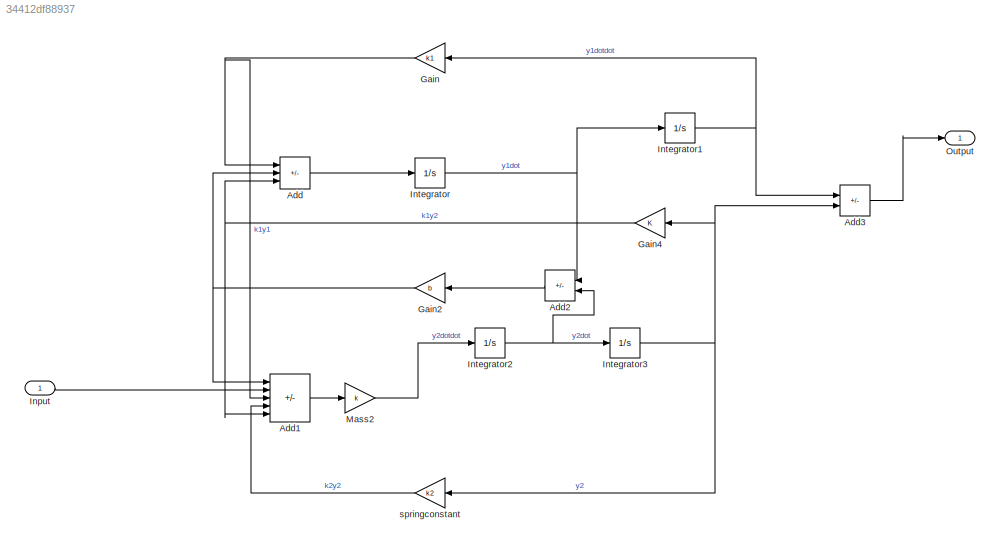
MODEL slx_34412df88937
KIND model
CONFIG AbsTol = auto
CONFIG EnableMultiTasking = off
CONFIG FixedStep = auto
CONFIG MaxStep = auto
CONFIG MinStep = auto
CONFIG RelTol = 1e-3
CONFIG SampleTimeConstraint = Unconstrained
CONFIG SolverName = VariableStepAuto
CONFIG StartTime = 0.0
CONFIG StopTime = 10.0
WORKSPACE source: mxarray member
WORKSPACE b = 50
WORKSPACE k = 100
WORKSPACE k1 = 25
WORKSPACE k2 = 50
BLOCK [Sum] Add
  IconShape = rectangular
  Inputs = --+
  Ports = [3, 1]
BLOCK [Sum] Add1
  IconShape = rectangular
  Inputs = +++-+
  Ports = [5, 1]
BLOCK [Sum] Add2
  IconShape = rectangular
  Inputs = +-
  NameLocation = top
  Ports = [2, 1]
BLOCK [Sum] Add3
  IconShape = rectangular
  Inputs = +-
  Ports = [2, 1]
BLOCK [Gain] Gain
  Gain = k1
  NameLocation = top
BLOCK [Gain] Gain2
  Gain = b
  NameLocation = top
BLOCK [Gain] Gain4
  NameLocation = top
BLOCK [Inport] Input
BLOCK [Integrator] Integrator
  Ports = [1, 1]
BLOCK [Integrator] Integrator1
  Ports = [1, 1]
BLOCK [Integrator] Integrator2
  Ports = [1, 1]
BLOCK [Integrator] Integrator3
  Ports = [1, 1]
BLOCK [Gain] Mass2
  Gain = k
BLOCK [Outport] Output
BLOCK [Gain] springconstant
  Gain = k2
  NameLocation = top
LINE Add1:1 -> Mass2:1
LINE Add2:1 -> Gain2:1
LINE Add3:1 -> Output:1
LINE Add:1 -> Integrator:1
NET Gain2:1 -> Add1:1, Add:2
NET Gain4:1 -> Add1:5, Add:3
NET Gain:1 -> Add1:3, Add:1
LINE Input:1 -> Add1:2
NET Integrator1:1 -> Add3:1, Gain:1
NET Integrator2:1 -> Add2:2, Integrator3:1
NET Integrator3:1 -> Add3:2, Gain4:1, springconstant:1
NET Integrator:1 -> Add2:1, Integrator1:1
LINE Mass2:1 -> Integrator2:1
LINE springconstant:1 -> Add1:4
note: NET lines group one-source signal fan-out (src -> all destinations, sorted); 1:1 wires keep LINE
